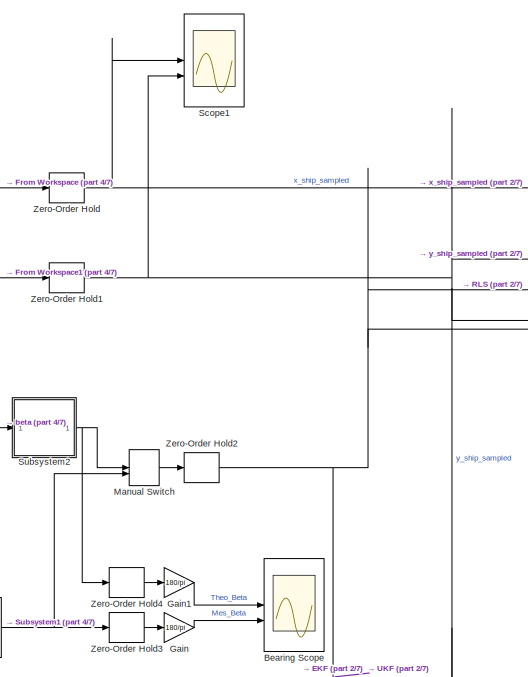
[diagram: root canvas - part 1/7, top center region]
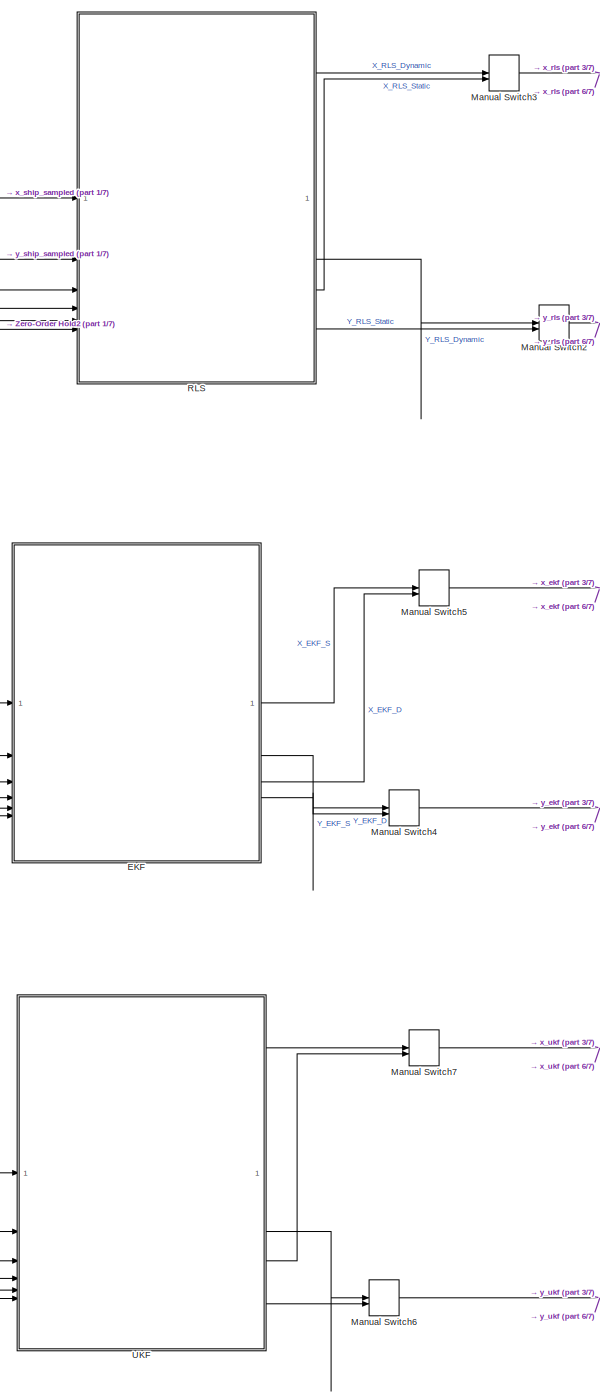
[diagram: root canvas - part 2/7, center side, full height]
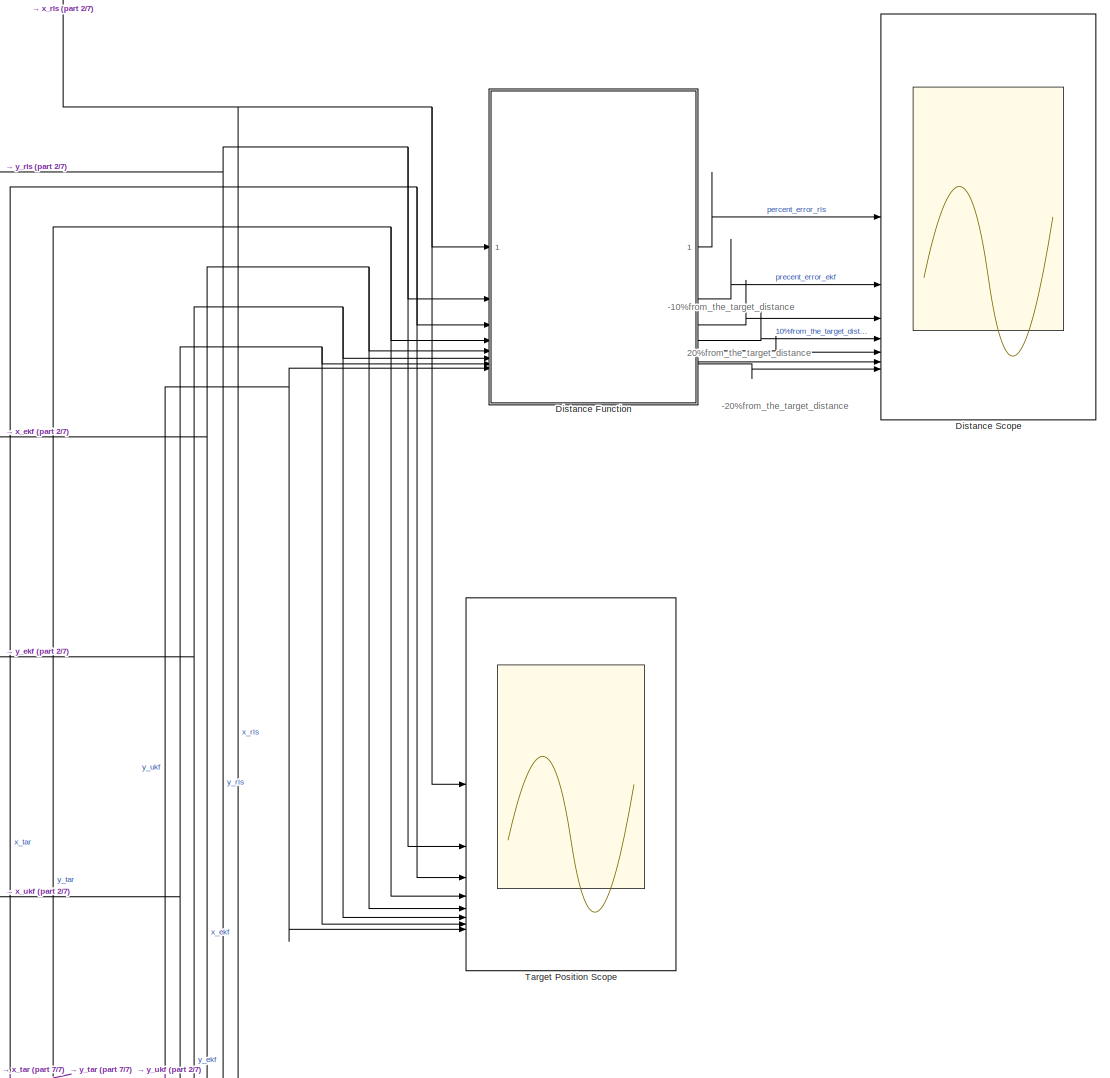
[diagram: root canvas - part 3/7, middle right region]
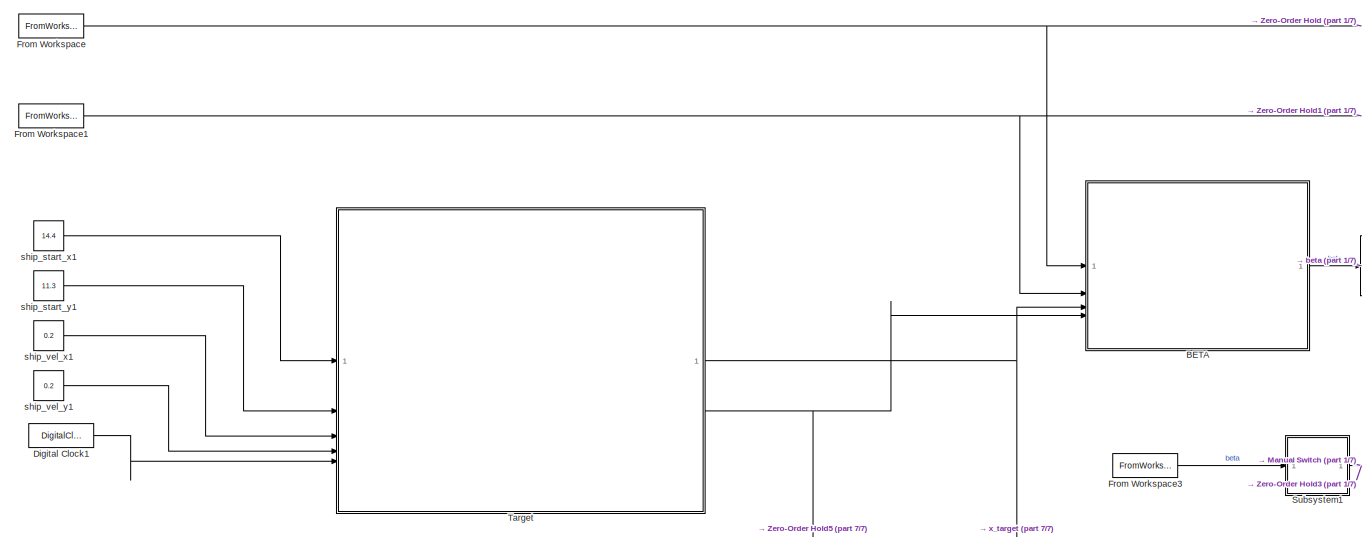
[diagram: root canvas - part 4/7, top left region]
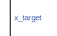
[diagram: root canvas - part 5/7, middle left region]
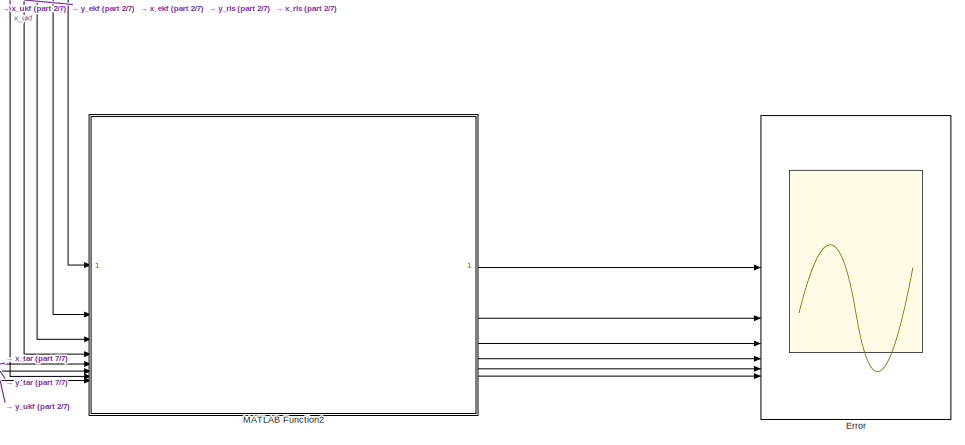
[diagram: root canvas - part 6/7, bottom right region]
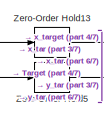
[diagram: root canvas - part 7/7, bottom center region]
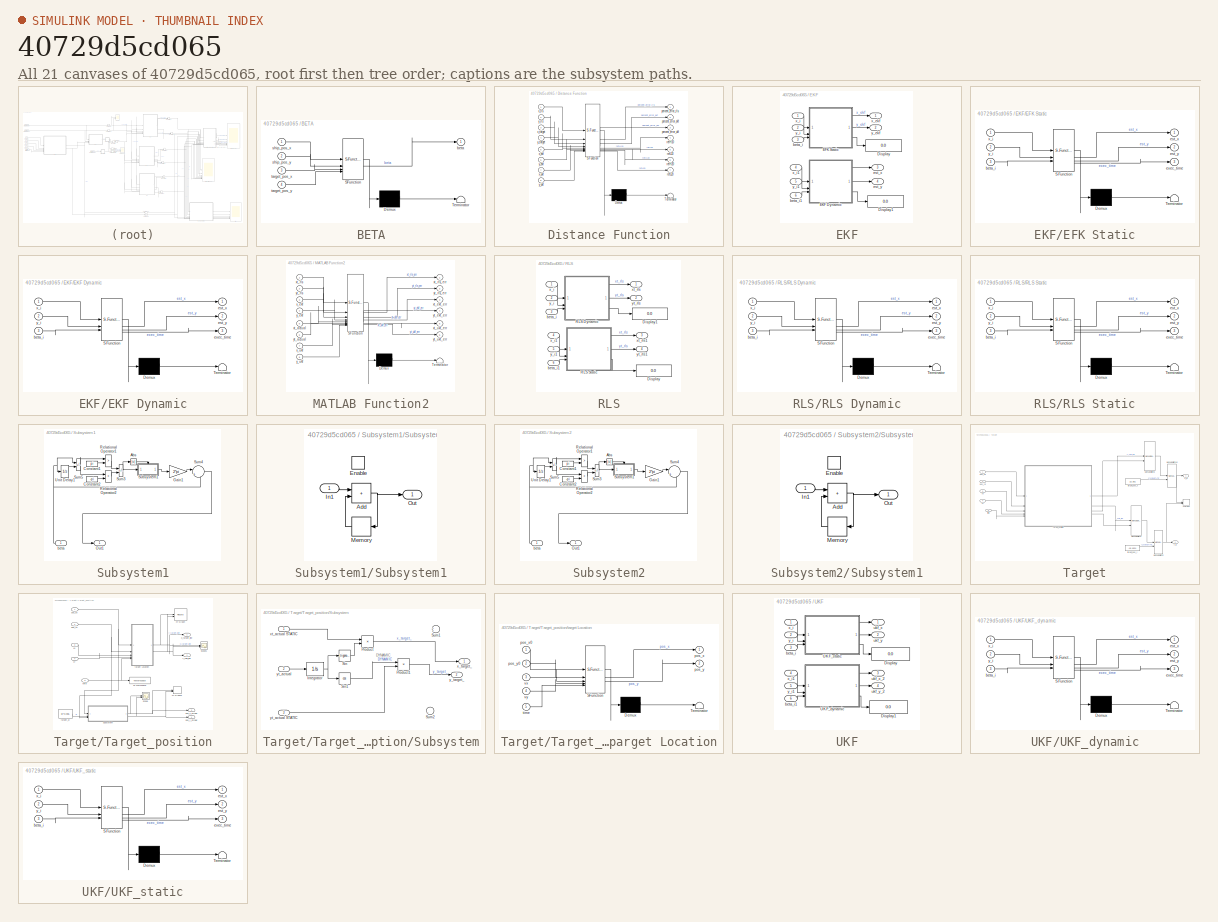
[diagram: thumbnail index - all 21 canvases of the model, root first then tree order]
MODEL slx_40729d5cd065
KIND model
CONFIG AbsTol = auto
CONFIG EnableMultiTasking = off
CONFIG FixedStep = auto
CONFIG InitFcn = dt=1;
CONFIG MaxStep = auto
CONFIG MinStep = auto
CONFIG RelTol = 1e-3
CONFIG SampleTimeConstraint = Unconstrained
CONFIG SolverName = VariableStepAuto
CONFIG StartTime = 0.0
CONFIG StopTime = 40
BLOCK [Scope]  Bearing Scope
  Floating = off
  NumInputPorts = 2
  ScopeSpecificationString = Simulink.scopes.TimeScopeBlockCfg('CurrentConfiguration', extmgr.ConfigurationSet(extmgr.Configuration('Core','General UI',true),extmgr.Configuration('Core','Source UI',true),extmgr.Configuration('Sources','WiredSimulink',true,'DataLoggingVariableName','ScopeData1','SampleTime','dt'),extmgr.Configuration('Visuals','Time Domain',true,'SerializedDisplays',{struct('MinYLimReal','-146.69317','MaxYLimR...<+1756ch>
BLOCK [Scope]  Scope1
  Floating = off
  NumInputPorts = 2
  ScopeSpecificationString = Simulink.scopes.TimeScopeBlockCfg('CurrentConfiguration', extmgr.ConfigurationSet(extmgr.Configuration('Core','General UI',true),extmgr.Configuration('Core','Source UI',true),extmgr.Configuration('Sources','WiredSimulink',true,'DataLoggingVariableName','ScopeData1','SampleTime','dt'),extmgr.Configuration('Visuals','Time Domain',true,'SerializedDisplays',{struct('MinYLimReal','-6.96338','MaxYLimRea...<+1784ch>
BLOCK [SubSystem] BETA
  ErrorFcn = Stateflow.Translate.translate
  PermitHierarchicalResolution = ExplicitOnly
  SFBlockType = MATLAB Function
  TreatAsAtomicUnit = on
BLOCK [Demux] BETA/ Demux 
  Outputs = 1
BLOCK [S-Function] BETA/ SFunction 
  EnableBusSupport = on
  FunctionName = sf_sfun
  PortCounts = [4 2]
  SFcnIsStateOwnerBlock = off
  SFunctionDeploymentMode = off
  Tag = Stateflow S-Function 5
BLOCK [Terminator] BETA/ Terminator 
BLOCK [Outport] BETA/beta
BLOCK [Inport] BETA/ship_pos_x
BLOCK [Inport] BETA/ship_pos_y
  Port = 2
BLOCK [Inport] BETA/target_pos_x
  Port = 3
BLOCK [Inport] BETA/target_pos_y
  Port = 4
BLOCK [DigitalClock] Digital Clock1
  SampleTime = 0.1
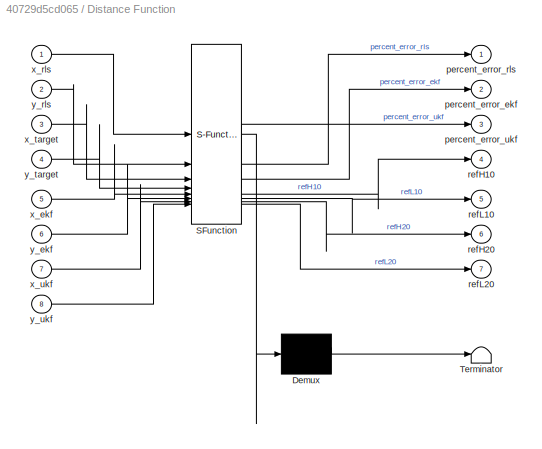
BLOCK [SubSystem] Distance Function
  ErrorFcn = Stateflow.Translate.translate
  PermitHierarchicalResolution = ExplicitOnly
  SFBlockType = MATLAB Function
  TreatAsAtomicUnit = on
BLOCK [Demux] Distance Function/ Demux 
  Outputs = 1
BLOCK [S-Function] Distance Function/ SFunction 
  EnableBusSupport = on
  FunctionName = sf_sfun
  PortCounts = [8 8]
  SFcnIsStateOwnerBlock = off
  SFunctionDeploymentMode = off
  Tag = Stateflow S-Function 10
BLOCK [Terminator] Distance Function/ Terminator 
BLOCK [Outport] Distance Function/percent_error_ekf
  Port = 2
BLOCK [Outport] Distance Function/percent_error_rls
BLOCK [Outport] Distance Function/percent_error_ukf
  Port = 3
BLOCK [Outport] Distance Function/refH10
  Port = 4
BLOCK [Outport] Distance Function/refH20
  Port = 6
BLOCK [Outport] Distance Function/refL10
  Port = 5
BLOCK [Outport] Distance Function/refL20
  Port = 7
BLOCK [Inport] Distance Function/x_ekf
  Port = 5
BLOCK [Inport] Distance Function/x_rls
BLOCK [Inport] Distance Function/x_target
  Port = 3
BLOCK [Inport] Distance Function/x_ukf
  Port = 7
BLOCK [Inport] Distance Function/y_ekf
  Port = 6
BLOCK [Inport] Distance Function/y_rls
  Port = 2
BLOCK [Inport] Distance Function/y_target
  Port = 4
BLOCK [Inport] Distance Function/y_ukf
  Port = 8
BLOCK [Scope] Distance Scope
  Floating = off
  NumInputPorts = 7
  ScopeSpecificationString = Simulink.scopes.TimeScopeBlockCfg('CurrentConfiguration', extmgr.ConfigurationSet(extmgr.Configuration('Core','General UI',true,'FigureColor',[1 1 1]),extmgr.Configuration('Core','Source UI',true),extmgr.Configuration('Sources','WiredSimulink',true,'DataLoggingVariableName','ScopeData1'),extmgr.Configuration('Visuals','Time Domain',true,'PlotType','Stairs','SerializedDisplays',{struct('MinYLimReal...<+2245ch>
BLOCK [SubSystem] EKF
BLOCK [Display] EKF/Display
  Decimation = 1
BLOCK [Display] EKF/Display1
  Decimation = 1
BLOCK [SubSystem] EKF/EFK Static
  ErrorFcn = Stateflow.Translate.translate
  PermitHierarchicalResolution = ExplicitOnly
  SFBlockType = MATLAB Function
  TreatAsAtomicUnit = on
BLOCK [Demux] EKF/EFK Static/ Demux 
  Outputs = 1
BLOCK [S-Function] EKF/EFK Static/ SFunction 
  EnableBusSupport = on
  FunctionName = sf_sfun
  PortCounts = [3 4]
  SFcnIsStateOwnerBlock = off
  SFunctionDeploymentMode = off
  Tag = Stateflow S-Function 6
BLOCK [Terminator] EKF/EFK Static/ Terminator 
BLOCK [Inport] EKF/EFK Static/beta_i
  Port = 3
BLOCK [Outport] EKF/EFK Static/est_x
BLOCK [Outport] EKF/EFK Static/est_y
  Port = 2
BLOCK [Outport] EKF/EFK Static/exec_time
  Port = 3
BLOCK [Inport] EKF/EFK Static/x_i
BLOCK [Inport] EKF/EFK Static/y_i
  Port = 2
BLOCK [SubSystem] EKF/EKF Dynamic
  ErrorFcn = Stateflow.Translate.translate
  PermitHierarchicalResolution = ExplicitOnly
  SFBlockType = MATLAB Function
  TreatAsAtomicUnit = on
BLOCK [Demux] EKF/EKF Dynamic/ Demux 
  Outputs = 1
BLOCK [S-Function] EKF/EKF Dynamic/ SFunction 
  EnableBusSupport = on
  FunctionName = sf_sfun
  PortCounts = [3 4]
  SFcnIsStateOwnerBlock = off
  SFunctionDeploymentMode = off
  Tag = Stateflow S-Function 7
BLOCK [Terminator] EKF/EKF Dynamic/ Terminator 
BLOCK [Inport] EKF/EKF Dynamic/beta_i
  Port = 3
BLOCK [Outport] EKF/EKF Dynamic/est_x
BLOCK [Outport] EKF/EKF Dynamic/est_y
  Port = 2
BLOCK [Outport] EKF/EKF Dynamic/exec_time
  Port = 3
BLOCK [Inport] EKF/EKF Dynamic/x_i
BLOCK [Inport] EKF/EKF Dynamic/y_i
  Port = 2
BLOCK [Inport] EKF/beta_i
  Port = 3
BLOCK [Inport] EKF/beta_i1
  Port = 6
BLOCK [Outport] EKF/est_x
  Port = 3
BLOCK [Outport] EKF/est_y
  Port = 4
BLOCK [Outport] EKF/x_ekf
BLOCK [Inport] EKF/x_i
BLOCK [Inport] EKF/x_i1
  Port = 4
BLOCK [Outport] EKF/y_ekf
  Port = 2
BLOCK [Inport] EKF/y_i
  Port = 2
BLOCK [Inport] EKF/y_i1
  Port = 5
BLOCK [Scope] Error
  Description = error
  Floating = off
  NumInputPorts = 6
  ScopeSpecificationString = Simulink.scopes.TimeScopeBlockCfg('CurrentConfiguration', extmgr.ConfigurationSet(extmgr.Configuration('Core','General UI',true),extmgr.Configuration('Core','Source UI',true),extmgr.Configuration('Sources','WiredSimulink',true,'DataLoggingVariableName','ScopeData2'),extmgr.Configuration('Visuals','Time Domain',true,'SerializedDisplays',{struct('MinYLimReal','-133.62571','MaxYLimReal','67.21279','Y...<+1825ch>
BLOCK [FromWorkspace] From Workspace
  VariableName = TT_X_inf
BLOCK [FromWorkspace] From Workspace1
  VariableName = TT_Y_inf
BLOCK [FromWorkspace] From Workspace3
  VariableName = TT_Bearing_Inf_Scaled
BLOCK [Gain] Gain
  Gain = 180/pi
BLOCK [Gain] Gain1
  Gain = 180/pi
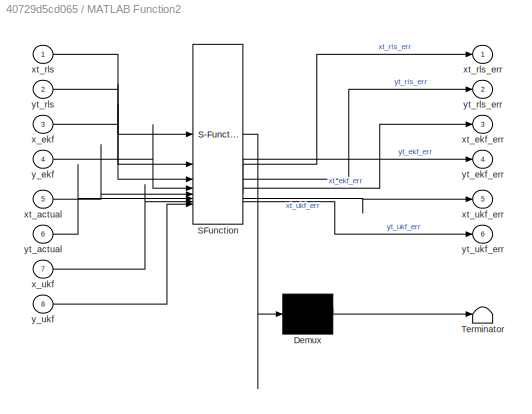
BLOCK [SubSystem] MATLAB Function2
  ErrorFcn = Stateflow.Translate.translate
  PermitHierarchicalResolution = ExplicitOnly
  SFBlockType = MATLAB Function
  TreatAsAtomicUnit = on
BLOCK [Demux] MATLAB Function2/ Demux 
  Outputs = 1
BLOCK [S-Function] MATLAB Function2/ SFunction 
  EnableBusSupport = on
  FunctionName = sf_sfun
  PortCounts = [8 7]
  SFcnIsStateOwnerBlock = off
  SFunctionDeploymentMode = off
  Tag = Stateflow S-Function 12
BLOCK [Terminator] MATLAB Function2/ Terminator 
BLOCK [Inport] MATLAB Function2/x_ekf
  Port = 3
BLOCK [Inport] MATLAB Function2/x_ukf
  Port = 7
BLOCK [Inport] MATLAB Function2/xt_actual
  Port = 5
BLOCK [Outport] MATLAB Function2/xt_ekf_err
  Port = 3
BLOCK [Inport] MATLAB Function2/xt_rls
BLOCK [Outport] MATLAB Function2/xt_rls_err
BLOCK [Outport] MATLAB Function2/xt_ukf_err
  Port = 5
BLOCK [Inport] MATLAB Function2/y_ekf
  Port = 4
BLOCK [Inport] MATLAB Function2/y_ukf
  Port = 8
BLOCK [Inport] MATLAB Function2/yt_actual
  Port = 6
BLOCK [Outport] MATLAB Function2/yt_ekf_err
  Port = 4
BLOCK [Inport] MATLAB Function2/yt_rls
  Port = 2
BLOCK [Outport] MATLAB Function2/yt_rls_err
  Port = 2
BLOCK [Outport] MATLAB Function2/yt_ukf_err
  Port = 6
BLOCK [ManualSwitch] Manual Switch
  CurrentSetting = 0
BLOCK [ManualSwitch] Manual Switch2
  CurrentSetting = 0
BLOCK [ManualSwitch] Manual Switch3
  CurrentSetting = 0
BLOCK [ManualSwitch] Manual Switch4
BLOCK [ManualSwitch] Manual Switch5
BLOCK [ManualSwitch] Manual Switch6
BLOCK [ManualSwitch] Manual Switch7
BLOCK [SubSystem] RLS
BLOCK [Display] RLS/Display
  Decimation = 1
BLOCK [Display] RLS/Display1
  Decimation = 1
BLOCK [SubSystem] RLS/RLS Dynamic
  ErrorFcn = Stateflow.Translate.translate
  PermitHierarchicalResolution = ExplicitOnly
  SFBlockType = MATLAB Function
  TreatAsAtomicUnit = on
BLOCK [Demux] RLS/RLS Dynamic/ Demux 
  Outputs = 1
BLOCK [S-Function] RLS/RLS Dynamic/ SFunction 
  EnableBusSupport = on
  FunctionName = sf_sfun
  PortCounts = [3 4]
  SFcnIsStateOwnerBlock = off
  SFunctionDeploymentMode = off
  Tag = Stateflow S-Function 8
BLOCK [Terminator] RLS/RLS Dynamic/ Terminator 
BLOCK [Inport] RLS/RLS Dynamic/beta_i
  Port = 3
BLOCK [Outport] RLS/RLS Dynamic/est_x
BLOCK [Outport] RLS/RLS Dynamic/est_y
  Port = 2
BLOCK [Outport] RLS/RLS Dynamic/exec_time
  Port = 3
BLOCK [Inport] RLS/RLS Dynamic/x_i
BLOCK [Inport] RLS/RLS Dynamic/y_i
  Port = 2
BLOCK [SubSystem] RLS/RLS Static
  ErrorFcn = Stateflow.Translate.translate
  PermitHierarchicalResolution = ExplicitOnly
  SFBlockType = MATLAB Function
  TreatAsAtomicUnit = on
BLOCK [Demux] RLS/RLS Static/ Demux 
  Outputs = 1
BLOCK [S-Function] RLS/RLS Static/ SFunction 
  EnableBusSupport = on
  FunctionName = sf_sfun
  PortCounts = [3 4]
  SFcnIsStateOwnerBlock = off
  SFunctionDeploymentMode = off
  Tag = Stateflow S-Function 9
BLOCK [Terminator] RLS/RLS Static/ Terminator 
BLOCK [Inport] RLS/RLS Static/beta_i
  Port = 3
BLOCK [Outport] RLS/RLS Static/est_x
BLOCK [Outport] RLS/RLS Static/est_y
  Port = 2
BLOCK [Outport] RLS/RLS Static/exec_time
  Port = 3
BLOCK [Inport] RLS/RLS Static/x_i
BLOCK [Inport] RLS/RLS Static/y_i
  Port = 2
BLOCK [Inport] RLS/beta_i
  Port = 3
BLOCK [Inport] RLS/beta_i1
  Port = 6
BLOCK [Inport] RLS/x_i
BLOCK [Inport] RLS/x_i1
  Port = 4
BLOCK [Outport] RLS/xt_rls
BLOCK [Outport] RLS/xt_rls1
  Port = 3
BLOCK [Inport] RLS/y_i
  Port = 2
BLOCK [Inport] RLS/y_i1
  Port = 5
BLOCK [Outport] RLS/yt_rls
  Port = 2
BLOCK [Outport] RLS/yt_rls1
  Port = 4
BLOCK [SubSystem] Subsystem1
BLOCK [Abs] Subsystem1/Abs
BLOCK [Constant] Subsystem1/Constant1
  Value = pi
BLOCK [Constant] Subsystem1/Constant2
  Value = -pi
BLOCK [Gain] Subsystem1/Gain1
  Gain = 2*pi
  OutDataTypeStr = Inherit: Same as input
  ParamDataTypeStr = Inherit: Same as input
  SaturateOnIntegerOverflow = on
BLOCK [Outport] Subsystem1/Out1
BLOCK [RelationalOperator] Subsystem1/Relational Operator1
  InputSameDT = off
  Operator = >
BLOCK [RelationalOperator] Subsystem1/Relational Operator2
  InputSameDT = off
  Operator = <
BLOCK [SubSystem] Subsystem1/Subsystem1
BLOCK [Sum] Subsystem1/Subsystem1/Add
  IconShape = rectangular
BLOCK [EnablePort] Subsystem1/Subsystem1/Enable
BLOCK [Inport] Subsystem1/Subsystem1/In1
BLOCK [Memory] Subsystem1/Subsystem1/Memory
BLOCK [Outport] Subsystem1/Subsystem1/Out
BLOCK [Sum] Subsystem1/Sum3
  IconShape = rectangular
  Inputs = -+
  OutDataTypeStr = double
  SaturateOnIntegerOverflow = on
BLOCK [Sum] Subsystem1/Sum4
  Inputs = |++
  SaturateOnIntegerOverflow = on
BLOCK [Sum] Subsystem1/Sum5
  IconShape = rectangular
  Inputs = +-
  SaturateOnIntegerOverflow = on
BLOCK [UnitDelay] Subsystem1/Unit Delay1
  HasFrameUpgradeWarning = on
  SampleTime = 0.01
BLOCK [Inport] Subsystem1/beta
BLOCK [SubSystem] Subsystem2
BLOCK [Abs] Subsystem2/Abs
BLOCK [Constant] Subsystem2/Constant1
  Value = pi
BLOCK [Constant] Subsystem2/Constant2
  Value = -pi
BLOCK [Gain] Subsystem2/Gain1
  Gain = 2*pi
  OutDataTypeStr = Inherit: Same as input
  ParamDataTypeStr = Inherit: Same as input
  SaturateOnIntegerOverflow = on
BLOCK [Outport] Subsystem2/Out1
BLOCK [RelationalOperator] Subsystem2/Relational Operator1
  InputSameDT = off
  Operator = >
BLOCK [RelationalOperator] Subsystem2/Relational Operator2
  InputSameDT = off
  Operator = <
BLOCK [SubSystem] Subsystem2/Subsystem1
BLOCK [Sum] Subsystem2/Subsystem1/Add
  IconShape = rectangular
BLOCK [EnablePort] Subsystem2/Subsystem1/Enable
BLOCK [Inport] Subsystem2/Subsystem1/In1
BLOCK [Memory] Subsystem2/Subsystem1/Memory
BLOCK [Outport] Subsystem2/Subsystem1/Out
BLOCK [Sum] Subsystem2/Sum3
  IconShape = rectangular
  Inputs = -+
  OutDataTypeStr = double
  SaturateOnIntegerOverflow = on
BLOCK [Sum] Subsystem2/Sum4
  Inputs = |++
  SaturateOnIntegerOverflow = on
BLOCK [Sum] Subsystem2/Sum5
  IconShape = rectangular
  Inputs = +-
  SaturateOnIntegerOverflow = on
BLOCK [UnitDelay] Subsystem2/Unit Delay1
  HasFrameUpgradeWarning = on
  SampleTime = 0.01
BLOCK [Inport] Subsystem2/beta
BLOCK [SubSystem] Target
BLOCK [Scope] Target Position Scope
  Floating = off
  NumInputPorts = 8
  ScopeSpecificationString = Simulink.scopes.TimeScopeBlockCfg('CurrentConfiguration', extmgr.ConfigurationSet(extmgr.Configuration('Core','General UI',true,'FigureColor',[1 1 1]),extmgr.Configuration('Core','Source UI',true),extmgr.Configuration('Sources','WiredSimulink',true,'DataLoggingVariableName','ScopeData1'),extmgr.Configuration('Visuals','Time Domain',true,'SerializedDisplays',{struct('MinYLimReal','-48.4981','MaxYLi...<+2363ch>
BLOCK [ManualSwitch] Target/Manual Switch10
  CurrentSetting = 0
BLOCK [ManualSwitch] Target/Manual Switch2
  CurrentSetting = 0
BLOCK [ManualSwitch] Target/Manual Switch3
  CurrentSetting = 0
BLOCK [ManualSwitch] Target/Manual Switch8
  CurrentSetting = 0
BLOCK [SubSystem] Target/Target_position
BLOCK [Scope] Target/Target_position/Scope
  Floating = off
  NumInputPorts = 2
  ScopeSpecificationString = Simulink.scopes.TimeScopeBlockCfg('CurrentConfiguration', extmgr.ConfigurationSet(extmgr.Configuration('Core','General UI',true),extmgr.Configuration('Core','Source UI',true),extmgr.Configuration('Sources','WiredSimulink',true,'DataLoggingVariableName','ScopeData1'),extmgr.Configuration('Visuals','Time Domain',true,'SerializedDisplays',{struct('MinYLimReal','-13.89031','MaxYLimReal','17.54337','YL...<+1555ch>
BLOCK [Scope] Target/Target_position/Scope1
  Floating = off
  NumInputPorts = 2
  ScopeSpecificationString = Simulink.scopes.TimeScopeBlockCfg('CurrentConfiguration', extmgr.ConfigurationSet(extmgr.Configuration('Core','General UI',true),extmgr.Configuration('Core','Source UI',true),extmgr.Configuration('Sources','WiredSimulink',true,'DataLoggingVariableName','ScopeData1'),extmgr.Configuration('Visuals','Time Domain',true,'SerializedDisplays',{struct('MinYLimReal','-40.00000','MaxYLimReal','60.00000','YL...<+1454ch>
BLOCK [SubSystem] Target/Target_position/Subsystem
BLOCK [Integrator] Target/Target_position/Subsystem/Integrator
BLOCK [Product] Target/Target_position/Subsystem/Product
BLOCK [Product] Target/Target_position/Subsystem/Product1
BLOCK [Trigonometry] Target/Target_position/Subsystem/Sin
BLOCK [Trigonometry] Target/Target_position/Subsystem/Sin1
  Operator = cos
BLOCK [Sum] Target/Target_position/Subsystem/Sum1
  Inputs = ++|
BLOCK [Sum] Target/Target_position/Subsystem/Sum2
  Inputs = |++
BLOCK [Outport] Target/Target_position/Subsystem/x_target_
BLOCK [Inport] Target/Target_position/Subsystem/xt_actual STATIC
BLOCK [Outport] Target/Target_position/Subsystem/y_target_
  Port = 2
BLOCK [Inport] Target/Target_position/Subsystem/yt_actual
  Port = 2
BLOCK [Inport] Target/Target_position/Subsystem/yt_actual STATIC
  Port = 3
BLOCK [ToWorkspace] Target/Target_position/To Workspace
  FixptAsFi = on
  MaxDataPoints = inf
  SampleTime = -1
  SaveFormat = Timeseries
  VariableName = simout1
BLOCK [Record] Target/Target_position/XY Graph
  CompatibilityTag = XY
  FileSettingsInternal = {"entries":[{"content":{"excelSettings":{"content":{},"type":"Streamout.ExcelSettings"}},"type":"Streamout.FileSettingStorage","uuid":""}],"packageUris":["http:\/\/schema.mathworks.com\/mf0\/streamout_blocks\/R2020a"],"version":"1.0"}  <repeated x3 — deduplicated; at blocks: XY Graph, XY Graph2>
  Layout = [1 1]
  SignalsInternal = {"entries":[{"content":{"signals":[{"content":{"blockPath":[],"dimensions":[1],"domain":"","lineColor":"#ff6929","lineWidth":2,"port":1,"sid":[""],"signalID":1,"signalName":"x_target_line"},"type":"RecordBlkView.Signal","uuid":""},{"content":{"blockPath":[],"dimensions":[1],"domain":"","lineColor":"#b746ff","lineWidth":2,"port":2,"sid":[""],"signalID":2,"signalName":"y_target_line"},"type":"Record...<+172ch>
  VisualizationBindings = {"xyplotplugin":{"info":[{"series":[],"subplotID":1}]}}
  st = -1
BLOCK [Record] Target/Target_position/XY Graph2
  CompatibilityTag = XY
  Layout = [1 1]
  SignalsInternal = {"entries":[{"content":{"signals":[{"content":{"blockPath":[],"dimensions":[1],"domain":"","lineColor":"#64d413","lineWidth":2,"port":1,"sid":[""],"signalID":1,"signalName":"Subsystem:1"},"type":"RecordBlkView.Signal","uuid":""},{"content":{"blockPath":[],"dimensions":[1],"domain":"","lineColor":"#ff13a6","lineWidth":2,"port":2,"sid":[""],"signalID":2,"signalName":"Subsystem:2"},"type":"RecordBlkV...<+168ch>
  VisualizationBindings = {"sparklinesplugin":{"info":[{"bindingParametersList":[],"subplotID":1}]}}
BLOCK [Inport] Target/Target_position/pos_x0
BLOCK [Outport] Target/Target_position/pos_x_circular
  Port = 3
BLOCK [Inport] Target/Target_position/pos_y0
  Port = 2
BLOCK [Outport] Target/Target_position/pos_y_circular
  Port = 4
BLOCK [SubSystem] Target/Target_position/target Location
  ErrorFcn = Stateflow.Translate.translate
  PermitHierarchicalResolution = ExplicitOnly
  SFBlockType = MATLAB Function
  TreatAsAtomicUnit = on
BLOCK [Demux] Target/Target_position/target Location/ Demux 
  Outputs = 1
BLOCK [S-Function] Target/Target_position/target Location/ SFunction 
  EnableBusSupport = on
  FunctionName = sf_sfun
  PortCounts = [5 3]
  SFcnIsStateOwnerBlock = off
  SFunctionDeploymentMode = off
  Tag = Stateflow S-Function 3
BLOCK [Terminator] Target/Target_position/target Location/ Terminator 
BLOCK [Outport] Target/Target_position/target Location/pos_x
BLOCK [Inport] Target/Target_position/target Location/pos_x0
BLOCK [Outport] Target/Target_position/target Location/pos_y
  Port = 2
BLOCK [Inport] Target/Target_position/target Location/pos_y0
  Port = 2
BLOCK [Inport] Target/Target_position/target Location/time
  Port = 5
BLOCK [Inport] Target/Target_position/target Location/vx
  Port = 3
BLOCK [Inport] Target/Target_position/target Location/vy
  Port = 4
BLOCK [Constant] Target/Target_position/target_w
  Value = pi*0.005
BLOCK [Inport] Target/Target_position/time
  Port = 5
BLOCK [Inport] Target/Target_position/vx
  Port = 3
BLOCK [Inport] Target/Target_position/vy
  Port = 4
BLOCK [Outport] Target/Target_position/x_target_line
BLOCK [Outport] Target/Target_position/y_ship_line
  Port = 2
BLOCK [Record] Target/XY Graph
  CompatibilityTag = XY
  Layout = [1 1]
  SignalsInternal = {"entries":[{"content":{"signals":[{"content":{"blockPath":[],"dimensions":[1],"domain":"","lineColor":"#a2142f","lineWidth":2,"port":1,"sid":[""],"signalID":1,"signalName":"Manual Switch10"},"type":"RecordBlkView.Signal","uuid":""},{"content":{"blockPath":[],"dimensions":[1],"domain":"","lineColor":"#139fff","lineWidth":2,"port":2,"sid":[""],"signalID":2,"signalName":"Manual Switch2"},"type":"Rec...<+175ch>
  VisualizationBindings = {"xyplotplugin":{"info":[{"series":[],"subplotID":1}]}}
BLOCK [Inport] Target/pos_x0
BLOCK [Inport] Target/pos_y0
  Port = 2
BLOCK [Constant] Target/target_pos_x
  Value = 22.361
BLOCK [Constant] Target/target_pos_y
  Value = -19.1524
BLOCK [Inport] Target/time
  Port = 5
BLOCK [Inport] Target/vx
  Port = 3
BLOCK [Inport] Target/vy
  Port = 4
BLOCK [Outport] Target/x_i1
BLOCK [Outport] Target/y_i1
  Port = 2
BLOCK [SubSystem] UKF
BLOCK [Display] UKF/Display
  Decimation = 1
BLOCK [Display] UKF/Display1
  Decimation = 1
BLOCK [SubSystem] UKF/UKF_dynamic
  ErrorFcn = Stateflow.Translate.translate
  PermitHierarchicalResolution = ExplicitOnly
  SFBlockType = MATLAB Function
  TreatAsAtomicUnit = on
BLOCK [Demux] UKF/UKF_dynamic/ Demux 
  Outputs = 1
BLOCK [S-Function] UKF/UKF_dynamic/ SFunction 
  EnableBusSupport = on
  FunctionName = sf_sfun
  PortCounts = [3 4]
  SFcnIsStateOwnerBlock = off
  SFunctionDeploymentMode = off
  Tag = Stateflow S-Function 14
BLOCK [Terminator] UKF/UKF_dynamic/ Terminator 
BLOCK [Inport] UKF/UKF_dynamic/beta_i
  Port = 3
BLOCK [Outport] UKF/UKF_dynamic/est_x
BLOCK [Outport] UKF/UKF_dynamic/est_y
  Port = 2
BLOCK [Outport] UKF/UKF_dynamic/exec_time
  Port = 3
BLOCK [Inport] UKF/UKF_dynamic/x_i
BLOCK [Inport] UKF/UKF_dynamic/y_i
  Port = 2
BLOCK [SubSystem] UKF/UKF_static
  ErrorFcn = Stateflow.Translate.translate
  PermitHierarchicalResolution = ExplicitOnly
  SFBlockType = MATLAB Function
  TreatAsAtomicUnit = on
BLOCK [Demux] UKF/UKF_static/ Demux 
  Outputs = 1
BLOCK [S-Function] UKF/UKF_static/ SFunction 
  EnableBusSupport = on
  FunctionName = sf_sfun
  PortCounts = [3 4]
  SFcnIsStateOwnerBlock = off
  SFunctionDeploymentMode = off
  Tag = Stateflow S-Function 13
BLOCK [Terminator] UKF/UKF_static/ Terminator 
BLOCK [Inport] UKF/UKF_static/beta_i
  Port = 3
BLOCK [Outport] UKF/UKF_static/est_x
BLOCK [Outport] UKF/UKF_static/est_y
  Port = 2
BLOCK [Outport] UKF/UKF_static/exec_time
  Port = 3
BLOCK [Inport] UKF/UKF_static/x_i
BLOCK [Inport] UKF/UKF_static/y_i
  Port = 2
BLOCK [Inport] UKF/beta_i
  Port = 3
BLOCK [Inport] UKF/beta_i1
  Port = 6
BLOCK [Outport] UKF/ukf_x
BLOCK [Outport] UKF/ukf_x_2
  Port = 3
BLOCK [Outport] UKF/ukf_y
  Port = 2
BLOCK [Outport] UKF/ukf_y_2
  Port = 4
BLOCK [Inport] UKF/x_i
BLOCK [Inport] UKF/x_i1
  Port = 4
BLOCK [Inport] UKF/y_i
  Port = 2
BLOCK [Inport] UKF/y_i1
  Port = 5
BLOCK [ZeroOrderHold] Zero-Order Hold
  SampleTime = dt
BLOCK [ZeroOrderHold] Zero-Order Hold1
  SampleTime = dt
BLOCK [ZeroOrderHold] Zero-Order Hold13
BLOCK [ZeroOrderHold] Zero-Order Hold2
  SampleTime = -1
BLOCK [ZeroOrderHold] Zero-Order Hold3
BLOCK [ZeroOrderHold] Zero-Order Hold4
BLOCK [ZeroOrderHold] Zero-Order Hold5
BLOCK [Constant] ship_start_x1
  Value = 14.4
BLOCK [Constant] ship_start_y1
  Value = 11.3
BLOCK [Constant] ship_vel_x1
  Value = 0.2
BLOCK [Constant] ship_vel_y1
  Value = 0.2
ANNOTATION (root): -10%from_the_target_distance
ANNOTATION (root): -20%from_the_target_distance
ANNOTATION (root): 20%from_the_target_distance
ANNOTATION Target/Target_position/Subsystem: DYNAMIC
LINE BETA:1 -> Subsystem2:1
LINE Digital Clock1:1 -> Target:5
LINE Distance Function:1 -> Distance Scope:1
LINE Distance Function:2 -> Distance Scope:2
LINE Distance Function:3 -> Distance Scope:3
LINE Distance Function:4 -> Distance Scope:4
LINE Distance Function:5 -> Distance Scope:5
LINE Distance Function:6 -> Distance Scope:6
LINE Distance Function:7 -> Distance Scope:7
LINE EKF/EFK Static:1 -> EKF/x_ekf:1
LINE EKF/EFK Static:2 -> EKF/y_ekf:1
LINE EKF/EFK Static:3 -> EKF/Display:1
LINE EKF/EKF Dynamic:1 -> EKF/est_x:1
LINE EKF/EKF Dynamic:2 -> EKF/est_y:1
LINE EKF/EKF Dynamic:3 -> EKF/Display1:1
LINE EKF/beta_i1:1 -> EKF/EKF Dynamic:3
LINE EKF/beta_i:1 -> EKF/EFK Static:3
LINE EKF/x_i1:1 -> EKF/EKF Dynamic:1
LINE EKF/x_i:1 -> EKF/EFK Static:1
LINE EKF/y_i1:1 -> EKF/EKF Dynamic:2
LINE EKF/y_i:1 -> EKF/EFK Static:2
LINE EKF:1 -> Manual Switch5:1
LINE EKF:2 -> Manual Switch4:1
LINE EKF:3 -> Manual Switch5:2
LINE EKF:4 -> Manual Switch4:2
NET From Workspace1:1 -> BETA:2, Zero-Order Hold1:1
LINE From Workspace3:1 -> Subsystem1:1
NET From Workspace:1 -> BETA:1, Zero-Order Hold:1
LINE Gain1:1 ->  Bearing Scope:1
LINE Gain:1 ->  Bearing Scope:2
LINE MATLAB Function2:1 -> Error:1
LINE MATLAB Function2:2 -> Error:2
LINE MATLAB Function2:3 -> Error:3
LINE MATLAB Function2:4 -> Error:4
LINE MATLAB Function2:5 -> Error:5
LINE MATLAB Function2:6 -> Error:6
NET Manual Switch2:1 -> Distance Function:2, MATLAB Function2:2, Target Position Scope:2
NET Manual Switch3:1 -> Distance Function:1, MATLAB Function2:1, Target Position Scope:1
NET Manual Switch4:1 -> Distance Function:6, MATLAB Function2:4, Target Position Scope:6
NET Manual Switch5:1 -> Distance Function:5, MATLAB Function2:3, Target Position Scope:5
NET Manual Switch6:1 -> Distance Function:8, MATLAB Function2:8, Target Position Scope:8
NET Manual Switch7:1 -> Distance Function:7, MATLAB Function2:7, Target Position Scope:7
LINE Manual Switch:1 -> Zero-Order Hold2:1
LINE RLS/RLS Dynamic:1 -> RLS/xt_rls:1
LINE RLS/RLS Dynamic:2 -> RLS/yt_rls:1
LINE RLS/RLS Dynamic:3 -> RLS/Display1:1
LINE RLS/RLS Static:1 -> RLS/xt_rls1:1
LINE RLS/RLS Static:2 -> RLS/yt_rls1:1
LINE RLS/RLS Static:3 -> RLS/Display:1
LINE RLS/beta_i1:1 -> RLS/RLS Static:3
LINE RLS/beta_i:1 -> RLS/RLS Dynamic:3
LINE RLS/x_i1:1 -> RLS/RLS Static:1
LINE RLS/x_i:1 -> RLS/RLS Dynamic:1
LINE RLS/y_i1:1 -> RLS/RLS Static:2
LINE RLS/y_i:1 -> RLS/RLS Dynamic:2
LINE RLS:1 -> Manual Switch3:1
LINE RLS:2 -> Manual Switch2:1
LINE RLS:3 -> Manual Switch3:2
LINE RLS:4 -> Manual Switch2:2
LINE Subsystem1/Abs:1 -> Subsystem1/Subsystem1:enable
LINE Subsystem1/Constant1:1 -> Subsystem1/Relational Operator1:2
LINE Subsystem1/Constant2:1 -> Subsystem1/Relational Operator2:2
LINE Subsystem1/Gain1:1 -> Subsystem1/Sum4:1
LINE Subsystem1/Relational Operator1:1 -> Subsystem1/Sum3:1
LINE Subsystem1/Relational Operator2:1 -> Subsystem1/Sum3:2
NET Subsystem1/Subsystem1/Add:1 -> Subsystem1/Subsystem1/Memory:1, Subsystem1/Subsystem1/Out:1
LINE Subsystem1/Subsystem1/In1:1 -> Subsystem1/Subsystem1/Add:1
LINE Subsystem1/Subsystem1/Memory:1 -> Subsystem1/Subsystem1/Add:2
LINE Subsystem1/Subsystem1:1 -> Subsystem1/Gain1:1
NET Subsystem1/Sum3:1 -> Subsystem1/Abs:1, Subsystem1/Subsystem1:1
LINE Subsystem1/Sum4:1 -> Subsystem1/Out1:1
NET Subsystem1/Sum5:1 -> Subsystem1/Relational Operator1:1, Subsystem1/Relational Operator2:1
LINE Subsystem1/Unit Delay1:1 -> Subsystem1/Sum5:2
NET Subsystem1/beta:1 -> Subsystem1/Sum4:2, Subsystem1/Sum5:1, Subsystem1/Unit Delay1:1
NET Subsystem1:1 -> Manual Switch:2, Zero-Order Hold3:1
LINE Subsystem2/Abs:1 -> Subsystem2/Subsystem1:enable
LINE Subsystem2/Constant1:1 -> Subsystem2/Relational Operator1:2
LINE Subsystem2/Constant2:1 -> Subsystem2/Relational Operator2:2
LINE Subsystem2/Gain1:1 -> Subsystem2/Sum4:1
LINE Subsystem2/Relational Operator1:1 -> Subsystem2/Sum3:1
LINE Subsystem2/Relational Operator2:1 -> Subsystem2/Sum3:2
NET Subsystem2/Subsystem1/Add:1 -> Subsystem2/Subsystem1/Memory:1, Subsystem2/Subsystem1/Out:1
LINE Subsystem2/Subsystem1/In1:1 -> Subsystem2/Subsystem1/Add:1
LINE Subsystem2/Subsystem1/Memory:1 -> Subsystem2/Subsystem1/Add:2
LINE Subsystem2/Subsystem1:1 -> Subsystem2/Gain1:1
NET Subsystem2/Sum3:1 -> Subsystem2/Abs:1, Subsystem2/Subsystem1:1
LINE Subsystem2/Sum4:1 -> Subsystem2/Out1:1
NET Subsystem2/Sum5:1 -> Subsystem2/Relational Operator1:1, Subsystem2/Relational Operator2:1
LINE Subsystem2/Unit Delay1:1 -> Subsystem2/Sum5:2
NET Subsystem2/beta:1 -> Subsystem2/Sum4:2, Subsystem2/Sum5:1, Subsystem2/Unit Delay1:1
NET Subsystem2:1 -> Manual Switch:1, Zero-Order Hold4:1
NET Target/Manual Switch10:1 -> Target/XY Graph:1, Target/x_i1:1
NET Target/Manual Switch2:1 -> Target/XY Graph:2, Target/y_i1:1
LINE Target/Manual Switch3:1 -> Target/Manual Switch2:1
LINE Target/Manual Switch8:1 -> Target/Manual Switch10:1
NET Target/Target_position/Subsystem/Integrator:1 -> Target/Target_position/Subsystem/Sin1:1, Target/Target_position/Subsystem/Sin:1
LINE Target/Target_position/Subsystem/Product1:1 -> Target/Target_position/Subsystem/y_target_:1
LINE Target/Target_position/Subsystem/Product:1 -> Target/Target_position/Subsystem/x_target_:1
LINE Target/Target_position/Subsystem/Sin1:1 -> Target/Target_position/Subsystem/Product1:1
LINE Target/Target_position/Subsystem/Sin:1 -> Target/Target_position/Subsystem/Product:2
LINE Target/Target_position/Subsystem/xt_actual STATIC:1 -> Target/Target_position/Subsystem/Product:1
LINE Target/Target_position/Subsystem/yt_actual STATIC:1 -> Target/Target_position/Subsystem/Product1:2
LINE Target/Target_position/Subsystem/yt_actual:1 -> Target/Target_position/Subsystem/Integrator:1
NET Target/Target_position/Subsystem:1 -> Target/Target_position/Scope:1, Target/Target_position/XY Graph2:1, Target/Target_position/pos_x_circular:1
NET Target/Target_position/Subsystem:2 -> Target/Target_position/Scope:2, Target/Target_position/XY Graph2:2, Target/Target_position/pos_y_circular:1
NET Target/Target_position/pos_x0:1 -> Target/Target_position/Subsystem:1, Target/Target_position/target Location:1
NET Target/Target_position/pos_y0:1 -> Target/Target_position/Subsystem:3, Target/Target_position/target Location:2
NET Target/Target_position/target Location:1 -> Target/Target_position/Scope1:1, Target/Target_position/XY Graph:1, Target/Target_position/x_target_line:1
NET Target/Target_position/target Location:2 -> Target/Target_position/Scope1:2, Target/Target_position/XY Graph:2, Target/Target_position/y_ship_line:1
LINE Target/Target_position/target_w:1 -> Target/Target_position/Subsystem:2
NET Target/Target_position/time:1 -> Target/Target_position/To Workspace:1, Target/Target_position/target Location:5
LINE Target/Target_position/vx:1 -> Target/Target_position/target Location:3
LINE Target/Target_position/vy:1 -> Target/Target_position/target Location:4
LINE Target/Target_position:1 -> Target/Manual Switch8:1
LINE Target/Target_position:2 -> Target/Manual Switch3:1
LINE Target/Target_position:3 -> Target/Manual Switch8:2
LINE Target/Target_position:4 -> Target/Manual Switch3:2
LINE Target/pos_x0:1 -> Target/Target_position:1
LINE Target/pos_y0:1 -> Target/Target_position:2
LINE Target/target_pos_x:1 -> Target/Manual Switch10:2
LINE Target/target_pos_y:1 -> Target/Manual Switch2:2
LINE Target/time:1 -> Target/Target_position:5
LINE Target/vx:1 -> Target/Target_position:3
LINE Target/vy:1 -> Target/Target_position:4
NET Target:1 -> BETA:3, Zero-Order Hold13:1
NET Target:2 -> BETA:4, Zero-Order Hold5:1
LINE UKF/UKF_dynamic:1 -> UKF/ukf_x_2:1
LINE UKF/UKF_dynamic:2 -> UKF/ukf_y_2:1
LINE UKF/UKF_dynamic:3 -> UKF/Display1:1
LINE UKF/UKF_static:1 -> UKF/ukf_x:1
LINE UKF/UKF_static:2 -> UKF/ukf_y:1
LINE UKF/UKF_static:3 -> UKF/Display:1
LINE UKF/beta_i1:1 -> UKF/UKF_dynamic:3
LINE UKF/beta_i:1 -> UKF/UKF_static:3
LINE UKF/x_i1:1 -> UKF/UKF_dynamic:1
LINE UKF/x_i:1 -> UKF/UKF_static:1
LINE UKF/y_i1:1 -> UKF/UKF_dynamic:2
LINE UKF/y_i:1 -> UKF/UKF_static:2
LINE UKF:1 -> Manual Switch7:1
LINE UKF:2 -> Manual Switch6:1
LINE UKF:3 -> Manual Switch7:2
LINE UKF:4 -> Manual Switch6:2
NET Zero-Order Hold13:1 -> Distance Function:3, MATLAB Function2:5, Target Position Scope:3
NET Zero-Order Hold1:1 ->  Scope1:2, EKF:2, EKF:5, RLS:2, RLS:5, UKF:2, UKF:5
NET Zero-Order Hold2:1 -> EKF:3, EKF:6, RLS:3, RLS:6, UKF:3, UKF:6
LINE Zero-Order Hold3:1 -> Gain:1
LINE Zero-Order Hold4:1 -> Gain1:1
NET Zero-Order Hold5:1 -> Distance Function:4, MATLAB Function2:6, Target Position Scope:4
NET Zero-Order Hold:1 ->  Scope1:1, EKF:1, EKF:4, RLS:1, RLS:4, UKF:1, UKF:4
LINE ship_start_x1:1 -> Target:1
LINE ship_start_y1:1 -> Target:2
LINE ship_vel_x1:1 -> Target:3
LINE ship_vel_y1:1 -> Target:4
note: NET lines group one-source signal fan-out (src -> all destinations, sorted); 1:1 wires keep LINE
CHART MATLAB Function2 states=1 transitions=1
  STATE_LABEL 'eML_blk_kernel()'
  STATE_LABEL 'SCRIPT:\nfunction [xt_rls_err,yt_rls_err,xt_ekf_err,yt_ekf_err,xt_ukf_err,yt_ukf_err]   = fcn(xt_rls,yt_rls, x_ekf, y_ekf,xt_actual,yt_actual,x_ukf,y_ukf)\n% FCN Computes the percentage error for RLS and EKF position estimates\n\n% The percentage error for RLS estimates:\nxt_rls_err = ((xt_rls - xt_actual)/xt_actual)*100;\nyt_rls_err = ((yt_rls - yt_actual)/yt_actual)*100;\n\n% The percentage error for EK...<+216ch>'
CHART UKF/UKF_static states=1 transitions=1
  STATE_LABEL 'eML_blk_kernel()'
  STATE_LABEL "SCRIPT:\nfunction [est_x, est_y, exec_time] = ukf_fcn(x_i, y_i, beta_i)\n\npersistent X_i P Q R lambda alpha beta nx\n\n% Initialize execution time variable  \nexec_time = 0; % Ensures fixed-size output for Simulink compatibility  \n\n% Start timing  \ncoder.extrinsic('tic', 'toc'); % Allows tic/toc in Simulink  \ntStart = tic; % Capture start time \n\nif isempty(P)\n    nx = 6; % State dimension\n    P = 1000*...<+3017ch>"
CHART UKF/UKF_dynamic states=1 transitions=1
  STATE_LABEL 'eML_blk_kernel()'
  STATE_LABEL "SCRIPT:\nfunction [est_x, est_y, exec_time] = ukf_dynamic_fcn(x_i, y_i, beta_i)\n\npersistent X_i P Q R lambda alpha beta nx\n\n% Initialize execution time variable  \nexec_time = 0; % Ensures fixed-size output for Simulink compatibility  \n\n% Start timing  \ncoder.extrinsic('tic', 'toc'); % Allows tic/toc in Simulink  \ntStart = tic; % Capture start time  \n\nif isempty(P)\n    nx = 8; % State dimension for ...<+3176ch>"
CHART Target/Target_position/target Location states=1 transitions=1
  STATE_LABEL 'eML_blk_kernel()'
  STATE_LABEL 'SCRIPT:\nfunction [pos_x,pos_y] = fcn(pos_x0,pos_y0,vx,vy,time)\n% FCN Calculate the position of an object in a 2D plane over time\n%\n% Inputs:\n%   pos_x0 - Initial x-coordinate of the object\n%   pos_y0 - Initial y-coordinate of the object\n%   vx - Velocity of the object along the x-axis (constant)\n%   vy - Velocity of the object along the y-axis (constant)\n%   time - Time duration for which the obje...<+350ch>'
CHART BETA states=1 transitions=1
  STATE_LABEL 'eML_blk_kernel()'
  STATE_LABEL 'SCRIPT:\nfunction beta = fcn(ship_pos_x,ship_pos_y,target_pos_x,target_pos_y)\n% Calculation of the horizontal distance (dx) between the target and the ship\n\n% Calculation of the horizontal distance (dx) between the target and the ship\ndx = target_pos_x - ship_pos_x;\n\n% Calculation of the vertical distance (dy) between the target and the ship\ndy = target_pos_y - ship_pos_y;\n\n% `atan2(dy, dx)` return...<+73ch>'
CHART EKF/EFK Static states=1 transitions=1
  STATE_LABEL 'eML_blk_kernel()'
  STATE_LABEL "SCRIPT:\nfunction [est_x, est_y, exec_time] = ekf_fcn(x_i, y_i, beta_i)\n\npersistent X_i P Q R\n\n% Initialize execution time variable  \nexec_time = 0; % Ensures fixed-size output for Simulink compatibility  \n\n% Start timing  \ncoder.extrinsic('tic', 'toc'); % Allows tic/toc in Simulink  \ntStart = tic; % Capture start time\n\nif isempty(P)\n    P = 1000*eye(6); % Covariance matrix initialization (6x6)\n   ...<+1045ch>"
CHART EKF/EKF Dynamic states=1 transitions=1
  STATE_LABEL 'eML_blk_kernel()'
  STATE_LABEL "SCRIPT:\nfunction [est_x, est_y, exec_time] = ekf_fcn(x_i, y_i, beta_i)\n\npersistent X_i P Q R\n\n% Initialize execution time variable  \nexec_time = 0; % Ensures fixed-size output for Simulink compatibility  \n\n% Start timing  \ncoder.extrinsic('tic', 'toc'); % Allows tic/toc in Simulink  \ntStart = tic; % Capture start time  \n\nif isempty(P)\n    P = 1000*eye(8); % Covariance matrix initialization (8x8)\n ...<+1129ch>"
CHART RLS/RLS Dynamic states=1 transitions=1
  STATE_LABEL 'eML_blk_kernel()'
  STATE_LABEL 'SCRIPT:\nfunction [est_x, est_y, exec_time] = fcn(x_i, y_i, beta_i) \n% FCN Perform recursive least squares (RLS) algorithm with a forgetting factor to estimate\n% the position of a target based on noisy measurements and angular data.\n% Outputs: est_x - Estimated x-coordinate of the target and est_y - Estimated y-coordinate of the target\n\n% Declartion of the persistent variables \npersistent P X_i lam...<+1520ch>'
CHART RLS/RLS Static states=1 transitions=1
  STATE_LABEL 'eML_blk_kernel()'
  STATE_LABEL 'SCRIPT:\nfunction [est_x, est_y, exec_time] = fcn(x_i, y_i, beta_i)  \n% FCN Perform recursive estimation for position using a RLS algorithm  \n% Outputs:  \n% - est_x: Estimated x-coordinate  \n% - est_y: Estimated y-coordinate  \n% - exec_time: Execution time (fixed-size double for Simulink compatibility)  \n\n% Declare persistent variables  \npersistent Q P X_i  \n\n% Initialize execution time variable  \n...<+1281ch>'
CHART Distance Function states=1 transitions=1
  STATE_LABEL 'eML_blk_kernel()'
  STATE_LABEL 'SCRIPT:\nfunction [percent_error_rls,percent_error_ekf,percent_error_ukf,refH10, refL10,refH20, refL20]= fcn(x_rls,y_rls,x_target,y_target, x_ekf, y_ekf,x_ukf, y_ukf)\n% Outputs:\n%   percent_error_rls - Percentage error in distance for the RLS estimate\n%   percent_error_ekf - Percentage error in distance for the EKF estimate\n%   ref - Reference value defined as 10% of the target distance\n\n% The Eucl...<+841ch>'
CHART  states=0 transitions=0
CHART  states=0 transitions=0
CHART  states=0 transitions=0
CHART  states=0 transitions=0
CHART  states=0 transitions=0
CHART  states=0 transitions=0
CHART  states=0 transitions=0
CHART  states=0 transitions=0
CHART  states=0 transitions=0
CHART  states=0 transitions=0
